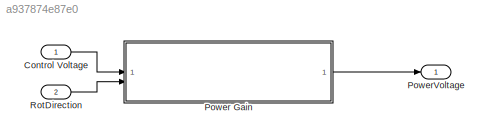
MODEL slx_a937874e87e0
KIND model
CONFIG AbsTol = auto
CONFIG EnableMultiTasking = off
CONFIG FixedStep = auto
CONFIG MaxStep = auto
CONFIG MinStep = auto
CONFIG RelTol = 1e-3
CONFIG SampleTimeConstraint = Unconstrained
CONFIG SolverName = VariableStepAuto
CONFIG StartTime = 0.0
CONFIG StopTime = 3
BLOCK [Inport] Control Voltage
BLOCK [SubSystem] Power Gain
  Kpa = 7.3
  ReferencedSubsystem = Power_Gain
BLOCK [Outport] PowerVoltage
BLOCK [Inport] RotDirection
  Port = 2
LINE Control Voltage:1 -> Power Gain:1
LINE Power Gain:1 -> PowerVoltage:1
LINE RotDirection:1 -> Power Gain:2
